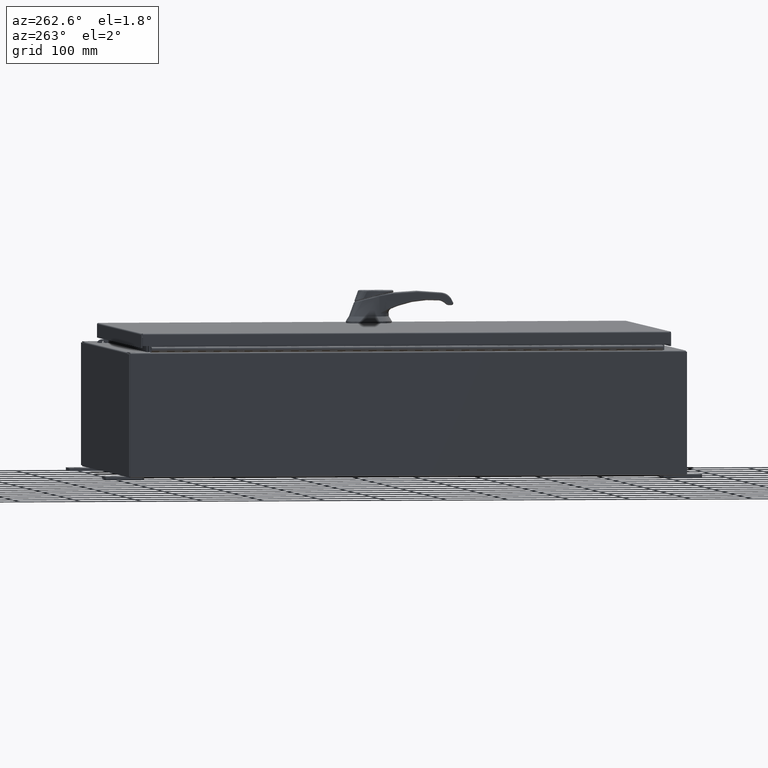
[diagram: clean part render]
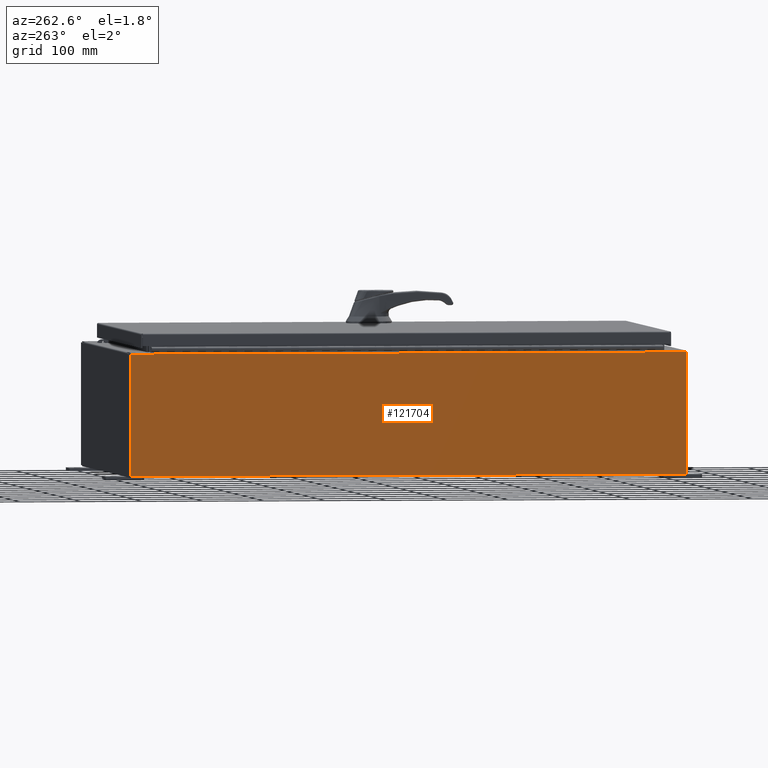
[diagram: same view with one face highlighted and labeled with its STEP entity id]
A machine part, auxiliary view. The second image highlights one B-rep face of the part: STEP entity #121704.
In plain terms, the highlighted planar face has unit normal (1, 0, 0).
Its self-contained STEP definition (entity closure, byte-faithful):
#978 = CARTESIAN_POINT ( 'NONE',  ( -12.00000000000003000, -17.92530000000000400, 7.837599999999999200 ) ) ;
#4398 = CARTESIAN_POINT ( 'NONE',  ( -12.00000000000003000, 17.92529999999999600, 7.837599999999999200 ) ) ;
#5056 = VERTEX_POINT ( 'NONE', #82861 ) ;
#9471 = AXIS2_PLACEMENT_3D ( 'NONE', #119159, #100354, #43379 ) ;
#10525 = DIRECTION ( 'NONE',  ( 0.0000000000000000000, 1.000000000000000000, 0.0000000000000000000 ) ) ;
#19809 = ORIENTED_EDGE ( 'NONE', *, *, #122454, .F. ) ;
#27004 = LINE ( 'NONE', #978, #68494 ) ;
#28083 = EDGE_CURVE ( 'NONE', #96301, #64542, #119028, .T. ) ;
#30745 = VECTOR ( 'NONE', #46767, 39.37007874015748100 ) ;
#35028 = DIRECTION ( 'NONE',  ( 3.584876173029202900E-015, 0.0000000000000000000, -1.000000000000000000 ) ) ;
#36006 = EDGE_LOOP ( 'NONE', ( #55609, #80289, #19809, #90374 ) ) ;
#36916 = VERTEX_POINT ( 'NONE', #57773 ) ;
#43379 = DIRECTION ( 'NONE',  ( 3.584876173029202900E-015, 0.0000000000000000000, -1.000000000000000000 ) ) ;
#46767 = DIRECTION ( 'NONE',  ( -3.584876173029202900E-015, 0.0000000000000000000, 1.000000000000000000 ) ) ;
#53998 = EDGE_CURVE ( 'NONE', #5056, #96301, #27004, .T. ) ;
#55609 = ORIENTED_EDGE ( 'NONE', *, *, #53998, .T. ) ;
#55893 = LINE ( 'NONE', #113870, #30745 ) ;
#57751 = VECTOR ( 'NONE', #80813, 39.37007874015748100 ) ;
#57773 = CARTESIAN_POINT ( 'NONE',  ( -12.00000000000000200, -17.92530000000000400, 0.01299999999999984700 ) ) ;
#64542 = VERTEX_POINT ( 'NONE', #119670 ) ;
#68494 = VECTOR ( 'NONE', #10525, 39.37007874015748100 ) ;
#70113 = EDGE_CURVE ( 'NONE', #36916, #5056, #55893, .T. ) ;
#80289 = ORIENTED_EDGE ( 'NONE', *, *, #28083, .T. ) ;
#80813 = DIRECTION ( 'NONE',  ( -0.0000000000000000000, 1.000000000000000000, -0.0000000000000000000 ) ) ;
#82861 = CARTESIAN_POINT ( 'NONE',  ( -12.00000000000003000, -17.92530000000000400, 7.837599999999999200 ) ) ;
#90374 = ORIENTED_EDGE ( 'NONE', *, *, #70113, .T. ) ;
#90700 = PLANE ( 'NONE',  #9471 ) ;
#91893 = CARTESIAN_POINT ( 'NONE',  ( -12.00000000000000200, 17.92529999999999600, -4.327932773236201900E-014 ) ) ;
#93563 = VECTOR ( 'NONE', #35028, 39.37007874015748100 ) ;
#96301 = VERTEX_POINT ( 'NONE', #4398 ) ;
#99674 = CARTESIAN_POINT ( 'NONE',  ( -12.00000000000000200, 17.92529999999999600, 0.01299999999999984700 ) ) ;
#100354 = DIRECTION ( 'NONE',  ( 1.000000000000000000, 0.0000000000000000000, 3.584876173029202900E-015 ) ) ;
#105588 = FACE_OUTER_BOUND ( 'NONE', #36006, .T. ) ;
#108459 = LINE ( 'NONE', #99674, #57751 ) ;
#113870 = CARTESIAN_POINT ( 'NONE',  ( -12.00000000000000200, -17.92530000000000400, -4.327932773236201900E-014 ) ) ;
#119028 = LINE ( 'NONE', #91893, #93563 ) ;
#119159 = CARTESIAN_POINT ( 'NONE',  ( -12.00000000000000200, 0.0000000000000000000, -4.327932773236201900E-014 ) ) ;
#119670 = CARTESIAN_POINT ( 'NONE',  ( -12.00000000000000200, 17.92529999999999600, 0.01299999999999983600 ) ) ;
#121704 = ADVANCED_FACE ( 'NONE', ( #105588 ), #90700, .F. ) ;
#122454 = EDGE_CURVE ( 'NONE', #36916, #64542, #108459, .T. ) ;